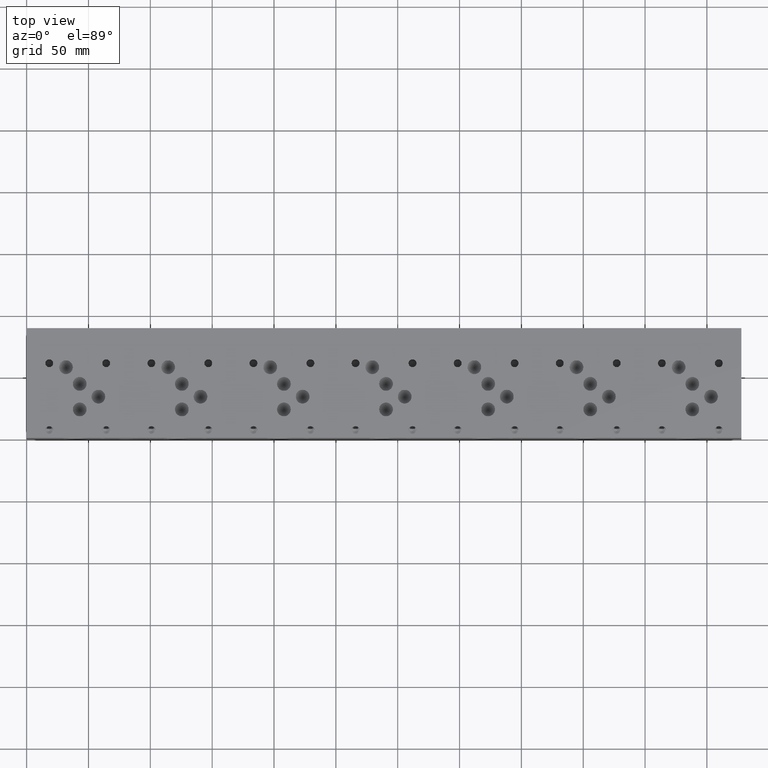
[diagram: clean part render]
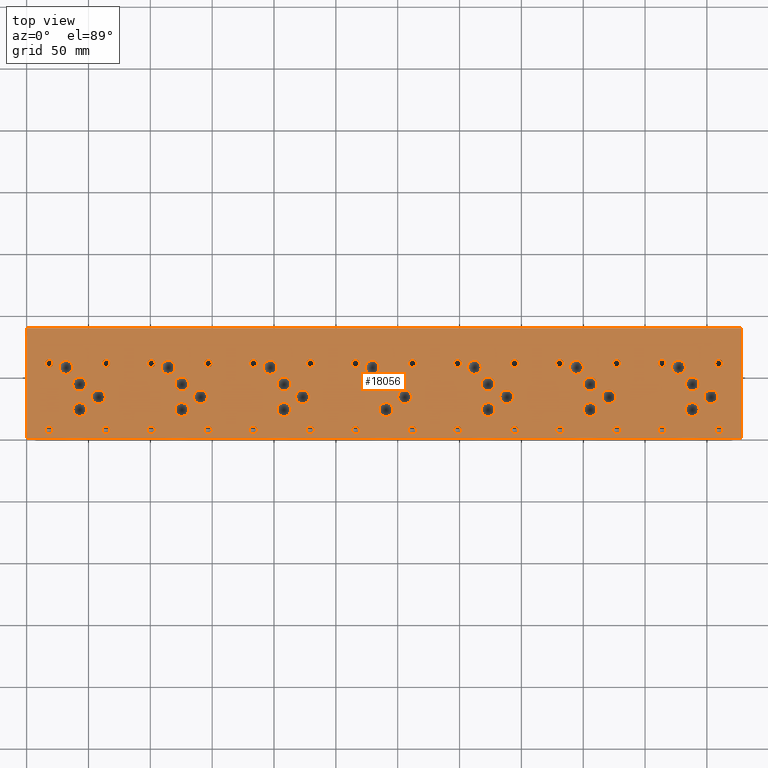
[diagram: same view with one face highlighted and labeled with its STEP entity id]
A machine part, top view. The second image highlights one B-rep face of the part: STEP entity #18056.
In plain terms, the highlighted planar face has unit normal (0, 0, 1).
Its self-contained STEP definition (entity closure, byte-faithful):
#602=CIRCLE('',#18781,5.5626);
#603=CIRCLE('',#18782,5.5626);
#606=CIRCLE('',#18787,5.5626);
#607=CIRCLE('',#18788,5.5626);
#610=CIRCLE('',#18793,5.5626);
#611=CIRCLE('',#18794,5.5626);
#614=CIRCLE('',#18799,5.5626);
#615=CIRCLE('',#18800,5.5626);
#618=CIRCLE('',#18805,5.5626);
#619=CIRCLE('',#18806,5.5626);
#622=CIRCLE('',#18811,5.5626);
#623=CIRCLE('',#18812,5.5626);
#626=CIRCLE('',#18817,5.5626);
#627=CIRCLE('',#18818,5.5626);
#630=CIRCLE('',#18823,5.5626);
#631=CIRCLE('',#18824,5.5626);
#634=CIRCLE('',#18829,5.5626);
#635=CIRCLE('',#18830,5.5626);
#638=CIRCLE('',#18835,5.5626);
#639=CIRCLE('',#18836,5.5626);
#642=CIRCLE('',#18841,5.5626);
#643=CIRCLE('',#18842,5.5626);
#646=CIRCLE('',#18847,5.5626);
#647=CIRCLE('',#18848,5.5626);
#650=CIRCLE('',#18853,5.5626);
#651=CIRCLE('',#18854,5.5626);
#654=CIRCLE('',#18859,5.5626);
#655=CIRCLE('',#18860,5.5626);
#658=CIRCLE('',#18865,5.5626);
#659=CIRCLE('',#18866,5.5626);
#662=CIRCLE('',#18871,5.5626);
#663=CIRCLE('',#18872,5.5626);
#666=CIRCLE('',#18877,5.5626);
#667=CIRCLE('',#18878,5.5626);
#670=CIRCLE('',#18883,5.5626);
#671=CIRCLE('',#18884,5.5626);
#674=CIRCLE('',#18889,5.5626);
#675=CIRCLE('',#18890,5.5626);
#678=CIRCLE('',#18895,5.5626);
#679=CIRCLE('',#18896,5.5626);
#682=CIRCLE('',#18901,5.5626);
#683=CIRCLE('',#18902,5.5626);
#686=CIRCLE('',#18907,5.5626);
#687=CIRCLE('',#18908,5.5626);
#690=CIRCLE('',#18913,5.5626);
#691=CIRCLE('',#18914,5.5626);
#694=CIRCLE('',#18919,5.5626);
#695=CIRCLE('',#18920,5.5626);
#698=CIRCLE('',#18925,5.5626);
#699=CIRCLE('',#18926,5.5626);
#702=CIRCLE('',#18931,5.5626);
#703=CIRCLE('',#18932,5.5626);
#706=CIRCLE('',#18937,5.5626);
#707=CIRCLE('',#18938,5.5626);
#710=CIRCLE('',#18943,5.5626);
#711=CIRCLE('',#18944,5.5626);
#717=CIRCLE('',#18953,3.175);
#718=CIRCLE('',#18954,3.175);
#724=CIRCLE('',#18964,3.175);
#725=CIRCLE('',#18965,3.175);
#731=CIRCLE('',#18975,3.175);
#732=CIRCLE('',#18976,3.175);
#738=CIRCLE('',#18986,3.175);
#739=CIRCLE('',#18987,3.175);
#745=CIRCLE('',#18997,3.175);
#746=CIRCLE('',#18998,3.175);
#752=CIRCLE('',#19008,3.175);
#753=CIRCLE('',#19009,3.175);
#759=CIRCLE('',#19019,3.175);
#760=CIRCLE('',#19020,3.175);
#766=CIRCLE('',#19030,3.175);
#767=CIRCLE('',#19031,3.175);
#773=CIRCLE('',#19041,3.175);
#774=CIRCLE('',#19042,3.175);
#780=CIRCLE('',#19052,3.175);
#781=CIRCLE('',#19053,3.175);
#787=CIRCLE('',#19063,3.175);
#788=CIRCLE('',#19064,3.175);
#794=CIRCLE('',#19074,3.175);
#795=CIRCLE('',#19075,3.175);
#801=CIRCLE('',#19085,3.175);
#802=CIRCLE('',#19086,3.175);
#808=CIRCLE('',#19096,3.175);
#809=CIRCLE('',#19097,3.175);
#815=CIRCLE('',#19107,3.175);
#816=CIRCLE('',#19108,3.175);
#822=CIRCLE('',#19118,3.175);
#823=CIRCLE('',#19119,3.175);
#829=CIRCLE('',#19129,3.175);
#830=CIRCLE('',#19130,3.175);
#836=CIRCLE('',#19140,3.175);
#837=CIRCLE('',#19141,3.175);
#843=CIRCLE('',#19151,3.175);
#844=CIRCLE('',#19152,3.175);
#850=CIRCLE('',#19162,3.175);
#851=CIRCLE('',#19163,3.175);
#857=CIRCLE('',#19173,3.175);
#858=CIRCLE('',#19174,3.175);
#864=CIRCLE('',#19184,3.175);
#865=CIRCLE('',#19185,3.175);
#871=CIRCLE('',#19195,3.175);
#872=CIRCLE('',#19196,3.175);
#878=CIRCLE('',#19206,3.175);
#879=CIRCLE('',#19207,3.175);
#885=CIRCLE('',#19217,3.175);
#886=CIRCLE('',#19218,3.175);
#892=CIRCLE('',#19228,3.175);
#893=CIRCLE('',#19229,3.175);
#899=CIRCLE('',#19239,3.175);
#900=CIRCLE('',#19240,3.175);
#906=CIRCLE('',#19250,3.175);
#907=CIRCLE('',#19251,3.175);
#1484=FACE_BOUND('',#3551,.T.);
#1485=FACE_BOUND('',#3552,.T.);
#1486=FACE_BOUND('',#3553,.T.);
#1487=FACE_BOUND('',#3554,.T.);
#1488=FACE_BOUND('',#3555,.T.);
#1489=FACE_BOUND('',#3556,.T.);
#1490=FACE_BOUND('',#3557,.T.);
#1491=FACE_BOUND('',#3558,.T.);
#1492=FACE_BOUND('',#3559,.T.);
#1493=FACE_BOUND('',#3560,.T.);
#1494=FACE_BOUND('',#3561,.T.);
#1495=FACE_BOUND('',#3562,.T.);
#1496=FACE_BOUND('',#3563,.T.);
#1497=FACE_BOUND('',#3564,.T.);
#1498=FACE_BOUND('',#3565,.T.);
#1499=FACE_BOUND('',#3566,.T.);
#1500=FACE_BOUND('',#3567,.T.);
#1501=FACE_BOUND('',#3568,.T.);
#1502=FACE_BOUND('',#3569,.T.);
#1503=FACE_BOUND('',#3570,.T.);
#1504=FACE_BOUND('',#3571,.T.);
#1505=FACE_BOUND('',#3572,.T.);
#1506=FACE_BOUND('',#3573,.T.);
#1507=FACE_BOUND('',#3574,.T.);
#1508=FACE_BOUND('',#3575,.T.);
#1509=FACE_BOUND('',#3576,.T.);
#1510=FACE_BOUND('',#3577,.T.);
#1511=FACE_BOUND('',#3578,.T.);
#1512=FACE_BOUND('',#3579,.T.);
#1513=FACE_BOUND('',#3580,.T.);
#1514=FACE_BOUND('',#3581,.T.);
#1515=FACE_BOUND('',#3582,.T.);
#1516=FACE_BOUND('',#3583,.T.);
#1517=FACE_BOUND('',#3584,.T.);
#1518=FACE_BOUND('',#3585,.T.);
#1519=FACE_BOUND('',#3586,.T.);
#1520=FACE_BOUND('',#3587,.T.);
#1521=FACE_BOUND('',#3588,.T.);
#1522=FACE_BOUND('',#3589,.T.);
#1523=FACE_BOUND('',#3590,.T.);
#1524=FACE_BOUND('',#3591,.T.);
#1525=FACE_BOUND('',#3592,.T.);
#1526=FACE_BOUND('',#3593,.T.);
#1527=FACE_BOUND('',#3594,.T.);
#1528=FACE_BOUND('',#3595,.T.);
#1529=FACE_BOUND('',#3596,.T.);
#1530=FACE_BOUND('',#3597,.T.);
#1531=FACE_BOUND('',#3598,.T.);
#1532=FACE_BOUND('',#3599,.T.);
#1533=FACE_BOUND('',#3600,.T.);
#1534=FACE_BOUND('',#3601,.T.);
#1535=FACE_BOUND('',#3602,.T.);
#1536=FACE_BOUND('',#3603,.T.);
#1537=FACE_BOUND('',#3604,.T.);
#1538=FACE_BOUND('',#3605,.T.);
#1539=FACE_BOUND('',#3606,.T.);
#2472=FACE_OUTER_BOUND('',#3550,.T.);
#3550=EDGE_LOOP('',(#15858,#15859,#15860,#15861));
#3551=EDGE_LOOP('',(#15862,#15863));
#3552=EDGE_LOOP('',(#15864,#15865));
#3553=EDGE_LOOP('',(#15866,#15867));
#3554=EDGE_LOOP('',(#15868,#15869));
#3555=EDGE_LOOP('',(#15870,#15871));
#3556=EDGE_LOOP('',(#15872,#15873));
#3557=EDGE_LOOP('',(#15874,#15875));
#3558=EDGE_LOOP('',(#15876,#15877));
#3559=EDGE_LOOP('',(#15878,#15879));
#3560=EDGE_LOOP('',(#15880,#15881));
#3561=EDGE_LOOP('',(#15882,#15883));
#3562=EDGE_LOOP('',(#15884,#15885));
#3563=EDGE_LOOP('',(#15886,#15887));
#3564=EDGE_LOOP('',(#15888,#15889));
#3565=EDGE_LOOP('',(#15890,#15891));
#3566=EDGE_LOOP('',(#15892,#15893));
#3567=EDGE_LOOP('',(#15894,#15895));
#3568=EDGE_LOOP('',(#15896,#15897));
#3569=EDGE_LOOP('',(#15898,#15899));
#3570=EDGE_LOOP('',(#15900,#15901));
#3571=EDGE_LOOP('',(#15902,#15903));
#3572=EDGE_LOOP('',(#15904,#15905));
#3573=EDGE_LOOP('',(#15906,#15907));
#3574=EDGE_LOOP('',(#15908,#15909));
#3575=EDGE_LOOP('',(#15910,#15911));
#3576=EDGE_LOOP('',(#15912,#15913));
#3577=EDGE_LOOP('',(#15914,#15915));
#3578=EDGE_LOOP('',(#15916,#15917));
#3579=EDGE_LOOP('',(#15918,#15919));
#3580=EDGE_LOOP('',(#15920,#15921));
#3581=EDGE_LOOP('',(#15922,#15923));
#3582=EDGE_LOOP('',(#15924,#15925));
#3583=EDGE_LOOP('',(#15926,#15927));
#3584=EDGE_LOOP('',(#15928,#15929));
#3585=EDGE_LOOP('',(#15930,#15931));
#3586=EDGE_LOOP('',(#15932,#15933));
#3587=EDGE_LOOP('',(#15934,#15935));
#3588=EDGE_LOOP('',(#15936,#15937));
#3589=EDGE_LOOP('',(#15938,#15939));
#3590=EDGE_LOOP('',(#15940,#15941));
#3591=EDGE_LOOP('',(#15942,#15943));
#3592=EDGE_LOOP('',(#15944,#15945));
#3593=EDGE_LOOP('',(#15946,#15947));
#3594=EDGE_LOOP('',(#15948,#15949));
#3595=EDGE_LOOP('',(#15950,#15951));
#3596=EDGE_LOOP('',(#15952,#15953));
#3597=EDGE_LOOP('',(#15954,#15955));
#3598=EDGE_LOOP('',(#15956,#15957));
#3599=EDGE_LOOP('',(#15958,#15959));
#3600=EDGE_LOOP('',(#15960,#15961));
#3601=EDGE_LOOP('',(#15962,#15963));
#3602=EDGE_LOOP('',(#15964,#15965));
#3603=EDGE_LOOP('',(#15966,#15967));
#3604=EDGE_LOOP('',(#15968,#15969));
#3605=EDGE_LOOP('',(#15970,#15971));
#3606=EDGE_LOOP('',(#15972,#15973));
#3643=LINE('',#23293,#5226);
#4830=LINE('',#29113,#6413);
#4890=LINE('',#29386,#6473);
#5190=LINE('',#31192,#6773);
#5226=VECTOR('',#19322,10.);
#6413=VECTOR('',#21339,10.);
#6473=VECTOR('',#21453,10.);
#6773=VECTOR('',#23209,10.);
#6798=VERTEX_POINT('',#23290);
#6799=VERTEX_POINT('',#23292);
#7889=VERTEX_POINT('',#29112);
#7947=VERTEX_POINT('',#29384);
#8165=VERTEX_POINT('',#30217);
#8166=VERTEX_POINT('',#30218);
#8170=VERTEX_POINT('',#30230);
#8171=VERTEX_POINT('',#30231);
#8175=VERTEX_POINT('',#30243);
#8176=VERTEX_POINT('',#30244);
#8180=VERTEX_POINT('',#30256);
#8181=VERTEX_POINT('',#30257);
#8185=VERTEX_POINT('',#30269);
#8186=VERTEX_POINT('',#30270);
#8190=VERTEX_POINT('',#30282);
#8191=VERTEX_POINT('',#30283);
#8195=VERTEX_POINT('',#30295);
#8196=VERTEX_POINT('',#30296);
#8200=VERTEX_POINT('',#30308);
#8201=VERTEX_POINT('',#30309);
#8205=VERTEX_POINT('',#30321);
#8206=VERTEX_POINT('',#30322);
#8210=VERTEX_POINT('',#30334);
#8211=VERTEX_POINT('',#30335);
#8215=VERTEX_POINT('',#30347);
#8216=VERTEX_POINT('',#30348);
#8220=VERTEX_POINT('',#30360);
#8221=VERTEX_POINT('',#30361);
#8225=VERTEX_POINT('',#30373);
#8226=VERTEX_POINT('',#30374);
#8230=VERTEX_POINT('',#30386);
#8231=VERTEX_POINT('',#30387);
#8235=VERTEX_POINT('',#30399);
#8236=VERTEX_POINT('',#30400);
#8240=VERTEX_POINT('',#30412);
#8241=VERTEX_POINT('',#30413);
#8245=VERTEX_POINT('',#30425);
#8246=VERTEX_POINT('',#30426);
#8250=VERTEX_POINT('',#30438);
#8251=VERTEX_POINT('',#30439);
#8255=VERTEX_POINT('',#30451);
#8256=VERTEX_POINT('',#30452);
#8260=VERTEX_POINT('',#30464);
#8261=VERTEX_POINT('',#30465);
#8265=VERTEX_POINT('',#30477);
#8266=VERTEX_POINT('',#30478);
#8270=VERTEX_POINT('',#30490);
#8271=VERTEX_POINT('',#30491);
#8275=VERTEX_POINT('',#30503);
#8276=VERTEX_POINT('',#30504);
#8280=VERTEX_POINT('',#30516);
#8281=VERTEX_POINT('',#30517);
#8285=VERTEX_POINT('',#30529);
#8286=VERTEX_POINT('',#30530);
#8290=VERTEX_POINT('',#30542);
#8291=VERTEX_POINT('',#30543);
#8295=VERTEX_POINT('',#30555);
#8296=VERTEX_POINT('',#30556);
#8300=VERTEX_POINT('',#30568);
#8301=VERTEX_POINT('',#30569);
#8308=VERTEX_POINT('',#30588);
#8309=VERTEX_POINT('',#30589);
#8316=VERTEX_POINT('',#30610);
#8317=VERTEX_POINT('',#30611);
#8324=VERTEX_POINT('',#30632);
#8325=VERTEX_POINT('',#30633);
#8332=VERTEX_POINT('',#30654);
#8333=VERTEX_POINT('',#30655);
#8340=VERTEX_POINT('',#30676);
#8341=VERTEX_POINT('',#30677);
#8348=VERTEX_POINT('',#30698);
#8349=VERTEX_POINT('',#30699);
#8356=VERTEX_POINT('',#30720);
#8357=VERTEX_POINT('',#30721);
#8364=VERTEX_POINT('',#30742);
#8365=VERTEX_POINT('',#30743);
#8372=VERTEX_POINT('',#30764);
#8373=VERTEX_POINT('',#30765);
#8380=VERTEX_POINT('',#30786);
#8381=VERTEX_POINT('',#30787);
#8388=VERTEX_POINT('',#30808);
#8389=VERTEX_POINT('',#30809);
#8396=VERTEX_POINT('',#30830);
#8397=VERTEX_POINT('',#30831);
#8404=VERTEX_POINT('',#30852);
#8405=VERTEX_POINT('',#30853);
#8412=VERTEX_POINT('',#30874);
#8413=VERTEX_POINT('',#30875);
#8420=VERTEX_POINT('',#30896);
#8421=VERTEX_POINT('',#30897);
#8428=VERTEX_POINT('',#30918);
#8429=VERTEX_POINT('',#30919);
#8436=VERTEX_POINT('',#30940);
#8437=VERTEX_POINT('',#30941);
#8444=VERTEX_POINT('',#30962);
#8445=VERTEX_POINT('',#30963);
#8452=VERTEX_POINT('',#30984);
#8453=VERTEX_POINT('',#30985);
#8460=VERTEX_POINT('',#31006);
#8461=VERTEX_POINT('',#31007);
#8468=VERTEX_POINT('',#31028);
#8469=VERTEX_POINT('',#31029);
#8476=VERTEX_POINT('',#31050);
#8477=VERTEX_POINT('',#31051);
#8484=VERTEX_POINT('',#31072);
#8485=VERTEX_POINT('',#31073);
#8492=VERTEX_POINT('',#31094);
#8493=VERTEX_POINT('',#31095);
#8500=VERTEX_POINT('',#31116);
#8501=VERTEX_POINT('',#31117);
#8508=VERTEX_POINT('',#31138);
#8509=VERTEX_POINT('',#31139);
#8516=VERTEX_POINT('',#31160);
#8517=VERTEX_POINT('',#31161);
#8524=VERTEX_POINT('',#31182);
#8525=VERTEX_POINT('',#31183);
#8561=EDGE_CURVE('',#6799,#6798,#3643,.T.);
#10172=EDGE_CURVE('',#7889,#6799,#4830,.T.);
#10256=EDGE_CURVE('',#6798,#7947,#4890,.T.);
#10563=EDGE_CURVE('',#8165,#8166,#602,.T.);
#10564=EDGE_CURVE('',#8166,#8165,#603,.T.);
#10569=EDGE_CURVE('',#8170,#8171,#606,.T.);
#10570=EDGE_CURVE('',#8171,#8170,#607,.T.);
#10575=EDGE_CURVE('',#8175,#8176,#610,.T.);
#10576=EDGE_CURVE('',#8176,#8175,#611,.T.);
#10581=EDGE_CURVE('',#8180,#8181,#614,.T.);
#10582=EDGE_CURVE('',#8181,#8180,#615,.T.);
#10587=EDGE_CURVE('',#8185,#8186,#618,.T.);
#10588=EDGE_CURVE('',#8186,#8185,#619,.T.);
#10593=EDGE_CURVE('',#8190,#8191,#622,.T.);
#10594=EDGE_CURVE('',#8191,#8190,#623,.T.);
#10599=EDGE_CURVE('',#8195,#8196,#626,.T.);
#10600=EDGE_CURVE('',#8196,#8195,#627,.T.);
#10605=EDGE_CURVE('',#8200,#8201,#630,.T.);
#10606=EDGE_CURVE('',#8201,#8200,#631,.T.);
#10611=EDGE_CURVE('',#8205,#8206,#634,.T.);
#10612=EDGE_CURVE('',#8206,#8205,#635,.T.);
#10617=EDGE_CURVE('',#8210,#8211,#638,.T.);
#10618=EDGE_CURVE('',#8211,#8210,#639,.T.);
#10623=EDGE_CURVE('',#8215,#8216,#642,.T.);
#10624=EDGE_CURVE('',#8216,#8215,#643,.T.);
#10629=EDGE_CURVE('',#8220,#8221,#646,.T.);
#10630=EDGE_CURVE('',#8221,#8220,#647,.T.);
#10635=EDGE_CURVE('',#8225,#8226,#650,.T.);
#10636=EDGE_CURVE('',#8226,#8225,#651,.T.);
#10641=EDGE_CURVE('',#8230,#8231,#654,.T.);
#10642=EDGE_CURVE('',#8231,#8230,#655,.T.);
#10647=EDGE_CURVE('',#8235,#8236,#658,.T.);
#10648=EDGE_CURVE('',#8236,#8235,#659,.T.);
#10653=EDGE_CURVE('',#8240,#8241,#662,.T.);
#10654=EDGE_CURVE('',#8241,#8240,#663,.T.);
#10659=EDGE_CURVE('',#8245,#8246,#666,.T.);
#10660=EDGE_CURVE('',#8246,#8245,#667,.T.);
#10665=EDGE_CURVE('',#8250,#8251,#670,.T.);
#10666=EDGE_CURVE('',#8251,#8250,#671,.T.);
#10671=EDGE_CURVE('',#8255,#8256,#674,.T.);
#10672=EDGE_CURVE('',#8256,#8255,#675,.T.);
#10677=EDGE_CURVE('',#8260,#8261,#678,.T.);
#10678=EDGE_CURVE('',#8261,#8260,#679,.T.);
#10683=EDGE_CURVE('',#8265,#8266,#682,.T.);
#10684=EDGE_CURVE('',#8266,#8265,#683,.T.);
#10689=EDGE_CURVE('',#8270,#8271,#686,.T.);
#10690=EDGE_CURVE('',#8271,#8270,#687,.T.);
#10695=EDGE_CURVE('',#8275,#8276,#690,.T.);
#10696=EDGE_CURVE('',#8276,#8275,#691,.T.);
#10701=EDGE_CURVE('',#8280,#8281,#694,.T.);
#10702=EDGE_CURVE('',#8281,#8280,#695,.T.);
#10707=EDGE_CURVE('',#8285,#8286,#698,.T.);
#10708=EDGE_CURVE('',#8286,#8285,#699,.T.);
#10713=EDGE_CURVE('',#8290,#8291,#702,.T.);
#10714=EDGE_CURVE('',#8291,#8290,#703,.T.);
#10719=EDGE_CURVE('',#8295,#8296,#706,.T.);
#10720=EDGE_CURVE('',#8296,#8295,#707,.T.);
#10725=EDGE_CURVE('',#8300,#8301,#710,.T.);
#10726=EDGE_CURVE('',#8301,#8300,#711,.T.);
#10734=EDGE_CURVE('',#8308,#8309,#717,.T.);
#10735=EDGE_CURVE('',#8309,#8308,#718,.T.);
#10744=EDGE_CURVE('',#8316,#8317,#724,.T.);
#10745=EDGE_CURVE('',#8317,#8316,#725,.T.);
#10754=EDGE_CURVE('',#8324,#8325,#731,.T.);
#10755=EDGE_CURVE('',#8325,#8324,#732,.T.);
#10764=EDGE_CURVE('',#8332,#8333,#738,.T.);
#10765=EDGE_CURVE('',#8333,#8332,#739,.T.);
#10774=EDGE_CURVE('',#8340,#8341,#745,.T.);
#10775=EDGE_CURVE('',#8341,#8340,#746,.T.);
#10784=EDGE_CURVE('',#8348,#8349,#752,.T.);
#10785=EDGE_CURVE('',#8349,#8348,#753,.T.);
#10794=EDGE_CURVE('',#8356,#8357,#759,.T.);
#10795=EDGE_CURVE('',#8357,#8356,#760,.T.);
#10804=EDGE_CURVE('',#8364,#8365,#766,.T.);
#10805=EDGE_CURVE('',#8365,#8364,#767,.T.);
#10814=EDGE_CURVE('',#8372,#8373,#773,.T.);
#10815=EDGE_CURVE('',#8373,#8372,#774,.T.);
#10824=EDGE_CURVE('',#8380,#8381,#780,.T.);
#10825=EDGE_CURVE('',#8381,#8380,#781,.T.);
#10834=EDGE_CURVE('',#8388,#8389,#787,.T.);
#10835=EDGE_CURVE('',#8389,#8388,#788,.T.);
#10844=EDGE_CURVE('',#8396,#8397,#794,.T.);
#10845=EDGE_CURVE('',#8397,#8396,#795,.T.);
#10854=EDGE_CURVE('',#8404,#8405,#801,.T.);
#10855=EDGE_CURVE('',#8405,#8404,#802,.T.);
#10864=EDGE_CURVE('',#8412,#8413,#808,.T.);
#10865=EDGE_CURVE('',#8413,#8412,#809,.T.);
#10874=EDGE_CURVE('',#8420,#8421,#815,.T.);
#10875=EDGE_CURVE('',#8421,#8420,#816,.T.);
#10884=EDGE_CURVE('',#8428,#8429,#822,.T.);
#10885=EDGE_CURVE('',#8429,#8428,#823,.T.);
#10894=EDGE_CURVE('',#8436,#8437,#829,.T.);
#10895=EDGE_CURVE('',#8437,#8436,#830,.T.);
#10904=EDGE_CURVE('',#8444,#8445,#836,.T.);
#10905=EDGE_CURVE('',#8445,#8444,#837,.T.);
#10914=EDGE_CURVE('',#8452,#8453,#843,.T.);
#10915=EDGE_CURVE('',#8453,#8452,#844,.T.);
#10924=EDGE_CURVE('',#8460,#8461,#850,.T.);
#10925=EDGE_CURVE('',#8461,#8460,#851,.T.);
#10934=EDGE_CURVE('',#8468,#8469,#857,.T.);
#10935=EDGE_CURVE('',#8469,#8468,#858,.T.);
#10944=EDGE_CURVE('',#8476,#8477,#864,.T.);
#10945=EDGE_CURVE('',#8477,#8476,#865,.T.);
#10954=EDGE_CURVE('',#8484,#8485,#871,.T.);
#10955=EDGE_CURVE('',#8485,#8484,#872,.T.);
#10964=EDGE_CURVE('',#8492,#8493,#878,.T.);
#10965=EDGE_CURVE('',#8493,#8492,#879,.T.);
#10974=EDGE_CURVE('',#8500,#8501,#885,.T.);
#10975=EDGE_CURVE('',#8501,#8500,#886,.T.);
#10984=EDGE_CURVE('',#8508,#8509,#892,.T.);
#10985=EDGE_CURVE('',#8509,#8508,#893,.T.);
#10994=EDGE_CURVE('',#8516,#8517,#899,.T.);
#10995=EDGE_CURVE('',#8517,#8516,#900,.T.);
#11004=EDGE_CURVE('',#8524,#8525,#906,.T.);
#11005=EDGE_CURVE('',#8525,#8524,#907,.T.);
#11009=EDGE_CURVE('',#7947,#7889,#5190,.T.);
#15858=ORIENTED_EDGE('',*,*,#8561,.T.);
#15859=ORIENTED_EDGE('',*,*,#10256,.T.);
#15860=ORIENTED_EDGE('',*,*,#11009,.T.);
#15861=ORIENTED_EDGE('',*,*,#10172,.T.);
#15862=ORIENTED_EDGE('',*,*,#10563,.T.);
#15863=ORIENTED_EDGE('',*,*,#10564,.T.);
#15864=ORIENTED_EDGE('',*,*,#10569,.T.);
#15865=ORIENTED_EDGE('',*,*,#10570,.T.);
#15866=ORIENTED_EDGE('',*,*,#10575,.T.);
#15867=ORIENTED_EDGE('',*,*,#10576,.T.);
#15868=ORIENTED_EDGE('',*,*,#10581,.T.);
#15869=ORIENTED_EDGE('',*,*,#10582,.T.);
#15870=ORIENTED_EDGE('',*,*,#10587,.T.);
#15871=ORIENTED_EDGE('',*,*,#10588,.T.);
#15872=ORIENTED_EDGE('',*,*,#10593,.T.);
#15873=ORIENTED_EDGE('',*,*,#10594,.T.);
#15874=ORIENTED_EDGE('',*,*,#10599,.T.);
#15875=ORIENTED_EDGE('',*,*,#10600,.T.);
#15876=ORIENTED_EDGE('',*,*,#10605,.T.);
#15877=ORIENTED_EDGE('',*,*,#10606,.T.);
#15878=ORIENTED_EDGE('',*,*,#10611,.T.);
#15879=ORIENTED_EDGE('',*,*,#10612,.T.);
#15880=ORIENTED_EDGE('',*,*,#10617,.T.);
#15881=ORIENTED_EDGE('',*,*,#10618,.T.);
#15882=ORIENTED_EDGE('',*,*,#10623,.T.);
#15883=ORIENTED_EDGE('',*,*,#10624,.T.);
#15884=ORIENTED_EDGE('',*,*,#10629,.T.);
#15885=ORIENTED_EDGE('',*,*,#10630,.T.);
#15886=ORIENTED_EDGE('',*,*,#10635,.T.);
#15887=ORIENTED_EDGE('',*,*,#10636,.T.);
#15888=ORIENTED_EDGE('',*,*,#10641,.T.);
#15889=ORIENTED_EDGE('',*,*,#10642,.T.);
#15890=ORIENTED_EDGE('',*,*,#10647,.T.);
#15891=ORIENTED_EDGE('',*,*,#10648,.T.);
#15892=ORIENTED_EDGE('',*,*,#10653,.T.);
#15893=ORIENTED_EDGE('',*,*,#10654,.T.);
#15894=ORIENTED_EDGE('',*,*,#10659,.T.);
#15895=ORIENTED_EDGE('',*,*,#10660,.T.);
#15896=ORIENTED_EDGE('',*,*,#10665,.T.);
#15897=ORIENTED_EDGE('',*,*,#10666,.T.);
#15898=ORIENTED_EDGE('',*,*,#10671,.T.);
#15899=ORIENTED_EDGE('',*,*,#10672,.T.);
#15900=ORIENTED_EDGE('',*,*,#10677,.T.);
#15901=ORIENTED_EDGE('',*,*,#10678,.T.);
#15902=ORIENTED_EDGE('',*,*,#10683,.T.);
#15903=ORIENTED_EDGE('',*,*,#10684,.T.);
#15904=ORIENTED_EDGE('',*,*,#10689,.T.);
#15905=ORIENTED_EDGE('',*,*,#10690,.T.);
#15906=ORIENTED_EDGE('',*,*,#10695,.T.);
#15907=ORIENTED_EDGE('',*,*,#10696,.T.);
#15908=ORIENTED_EDGE('',*,*,#10701,.T.);
#15909=ORIENTED_EDGE('',*,*,#10702,.T.);
#15910=ORIENTED_EDGE('',*,*,#10707,.T.);
#15911=ORIENTED_EDGE('',*,*,#10708,.T.);
#15912=ORIENTED_EDGE('',*,*,#10713,.T.);
#15913=ORIENTED_EDGE('',*,*,#10714,.T.);
#15914=ORIENTED_EDGE('',*,*,#10719,.T.);
#15915=ORIENTED_EDGE('',*,*,#10720,.T.);
#15916=ORIENTED_EDGE('',*,*,#10725,.T.);
#15917=ORIENTED_EDGE('',*,*,#10726,.T.);
#15918=ORIENTED_EDGE('',*,*,#10734,.T.);
#15919=ORIENTED_EDGE('',*,*,#10735,.T.);
#15920=ORIENTED_EDGE('',*,*,#10744,.T.);
#15921=ORIENTED_EDGE('',*,*,#10745,.T.);
#15922=ORIENTED_EDGE('',*,*,#10754,.T.);
#15923=ORIENTED_EDGE('',*,*,#10755,.T.);
#15924=ORIENTED_EDGE('',*,*,#10764,.T.);
#15925=ORIENTED_EDGE('',*,*,#10765,.T.);
#15926=ORIENTED_EDGE('',*,*,#10774,.T.);
#15927=ORIENTED_EDGE('',*,*,#10775,.T.);
#15928=ORIENTED_EDGE('',*,*,#10784,.T.);
#15929=ORIENTED_EDGE('',*,*,#10785,.T.);
#15930=ORIENTED_EDGE('',*,*,#10794,.T.);
#15931=ORIENTED_EDGE('',*,*,#10795,.T.);
#15932=ORIENTED_EDGE('',*,*,#10804,.T.);
#15933=ORIENTED_EDGE('',*,*,#10805,.T.);
#15934=ORIENTED_EDGE('',*,*,#10814,.T.);
#15935=ORIENTED_EDGE('',*,*,#10815,.T.);
#15936=ORIENTED_EDGE('',*,*,#10824,.T.);
#15937=ORIENTED_EDGE('',*,*,#10825,.T.);
#15938=ORIENTED_EDGE('',*,*,#10834,.T.);
#15939=ORIENTED_EDGE('',*,*,#10835,.T.);
#15940=ORIENTED_EDGE('',*,*,#10844,.T.);
#15941=ORIENTED_EDGE('',*,*,#10845,.T.);
#15942=ORIENTED_EDGE('',*,*,#10854,.T.);
#15943=ORIENTED_EDGE('',*,*,#10855,.T.);
#15944=ORIENTED_EDGE('',*,*,#10864,.T.);
#15945=ORIENTED_EDGE('',*,*,#10865,.T.);
#15946=ORIENTED_EDGE('',*,*,#10874,.T.);
#15947=ORIENTED_EDGE('',*,*,#10875,.T.);
#15948=ORIENTED_EDGE('',*,*,#10884,.T.);
#15949=ORIENTED_EDGE('',*,*,#10885,.T.);
#15950=ORIENTED_EDGE('',*,*,#10894,.T.);
#15951=ORIENTED_EDGE('',*,*,#10895,.T.);
#15952=ORIENTED_EDGE('',*,*,#10904,.T.);
#15953=ORIENTED_EDGE('',*,*,#10905,.T.);
#15954=ORIENTED_EDGE('',*,*,#10914,.T.);
#15955=ORIENTED_EDGE('',*,*,#10915,.T.);
#15956=ORIENTED_EDGE('',*,*,#10924,.T.);
#15957=ORIENTED_EDGE('',*,*,#10925,.T.);
#15958=ORIENTED_EDGE('',*,*,#10934,.T.);
#15959=ORIENTED_EDGE('',*,*,#10935,.T.);
#15960=ORIENTED_EDGE('',*,*,#10944,.T.);
#15961=ORIENTED_EDGE('',*,*,#10945,.T.);
#15962=ORIENTED_EDGE('',*,*,#10954,.T.);
#15963=ORIENTED_EDGE('',*,*,#10955,.T.);
#15964=ORIENTED_EDGE('',*,*,#10964,.T.);
#15965=ORIENTED_EDGE('',*,*,#10965,.T.);
#15966=ORIENTED_EDGE('',*,*,#10974,.T.);
#15967=ORIENTED_EDGE('',*,*,#10975,.T.);
#15968=ORIENTED_EDGE('',*,*,#10984,.T.);
#15969=ORIENTED_EDGE('',*,*,#10985,.T.);
#15970=ORIENTED_EDGE('',*,*,#10994,.T.);
#15971=ORIENTED_EDGE('',*,*,#10995,.T.);
#15972=ORIENTED_EDGE('',*,*,#11004,.T.);
#15973=ORIENTED_EDGE('',*,*,#11005,.T.);
#16485=PLANE('',#19257);
#18056=ADVANCED_FACE('',(#2472,#1484,#1485,#1486,#1487,#1488,#1489,#1490,
#1491,#1492,#1493,#1494,#1495,#1496,#1497,#1498,#1499,#1500,#1501,#1502,
#1503,#1504,#1505,#1506,#1507,#1508,#1509,#1510,#1511,#1512,#1513,#1514,
#1515,#1516,#1517,#1518,#1519,#1520,#1521,#1522,#1523,#1524,#1525,#1526,
#1527,#1528,#1529,#1530,#1531,#1532,#1533,#1534,#1535,#1536,#1537,#1538,
#1539),#16485,.T.);
#18781=AXIS2_PLACEMENT_3D('',#30219,#22121,#22122);
#18782=AXIS2_PLACEMENT_3D('',#30220,#22123,#22124);
#18787=AXIS2_PLACEMENT_3D('',#30232,#22135,#22136);
#18788=AXIS2_PLACEMENT_3D('',#30233,#22137,#22138);
#18793=AXIS2_PLACEMENT_3D('',#30245,#22149,#22150);
#18794=AXIS2_PLACEMENT_3D('',#30246,#22151,#22152);
#18799=AXIS2_PLACEMENT_3D('',#30258,#22163,#22164);
#18800=AXIS2_PLACEMENT_3D('',#30259,#22165,#22166);
#18805=AXIS2_PLACEMENT_3D('',#30271,#22177,#22178);
#18806=AXIS2_PLACEMENT_3D('',#30272,#22179,#22180);
#18811=AXIS2_PLACEMENT_3D('',#30284,#22191,#22192);
#18812=AXIS2_PLACEMENT_3D('',#30285,#22193,#22194);
#18817=AXIS2_PLACEMENT_3D('',#30297,#22205,#22206);
#18818=AXIS2_PLACEMENT_3D('',#30298,#22207,#22208);
#18823=AXIS2_PLACEMENT_3D('',#30310,#22219,#22220);
#18824=AXIS2_PLACEMENT_3D('',#30311,#22221,#22222);
#18829=AXIS2_PLACEMENT_3D('',#30323,#22233,#22234);
#18830=AXIS2_PLACEMENT_3D('',#30324,#22235,#22236);
#18835=AXIS2_PLACEMENT_3D('',#30336,#22247,#22248);
#18836=AXIS2_PLACEMENT_3D('',#30337,#22249,#22250);
#18841=AXIS2_PLACEMENT_3D('',#30349,#22261,#22262);
#18842=AXIS2_PLACEMENT_3D('',#30350,#22263,#22264);
#18847=AXIS2_PLACEMENT_3D('',#30362,#22275,#22276);
#18848=AXIS2_PLACEMENT_3D('',#30363,#22277,#22278);
#18853=AXIS2_PLACEMENT_3D('',#30375,#22289,#22290);
#18854=AXIS2_PLACEMENT_3D('',#30376,#22291,#22292);
#18859=AXIS2_PLACEMENT_3D('',#30388,#22303,#22304);
#18860=AXIS2_PLACEMENT_3D('',#30389,#22305,#22306);
#18865=AXIS2_PLACEMENT_3D('',#30401,#22317,#22318);
#18866=AXIS2_PLACEMENT_3D('',#30402,#22319,#22320);
#18871=AXIS2_PLACEMENT_3D('',#30414,#22331,#22332);
#18872=AXIS2_PLACEMENT_3D('',#30415,#22333,#22334);
#18877=AXIS2_PLACEMENT_3D('',#30427,#22345,#22346);
#18878=AXIS2_PLACEMENT_3D('',#30428,#22347,#22348);
#18883=AXIS2_PLACEMENT_3D('',#30440,#22359,#22360);
#18884=AXIS2_PLACEMENT_3D('',#30441,#22361,#22362);
#18889=AXIS2_PLACEMENT_3D('',#30453,#22373,#22374);
#18890=AXIS2_PLACEMENT_3D('',#30454,#22375,#22376);
#18895=AXIS2_PLACEMENT_3D('',#30466,#22387,#22388);
#18896=AXIS2_PLACEMENT_3D('',#30467,#22389,#22390);
#18901=AXIS2_PLACEMENT_3D('',#30479,#22401,#22402);
#18902=AXIS2_PLACEMENT_3D('',#30480,#22403,#22404);
#18907=AXIS2_PLACEMENT_3D('',#30492,#22415,#22416);
#18908=AXIS2_PLACEMENT_3D('',#30493,#22417,#22418);
#18913=AXIS2_PLACEMENT_3D('',#30505,#22429,#22430);
#18914=AXIS2_PLACEMENT_3D('',#30506,#22431,#22432);
#18919=AXIS2_PLACEMENT_3D('',#30518,#22443,#22444);
#18920=AXIS2_PLACEMENT_3D('',#30519,#22445,#22446);
#18925=AXIS2_PLACEMENT_3D('',#30531,#22457,#22458);
#18926=AXIS2_PLACEMENT_3D('',#30532,#22459,#22460);
#18931=AXIS2_PLACEMENT_3D('',#30544,#22471,#22472);
#18932=AXIS2_PLACEMENT_3D('',#30545,#22473,#22474);
#18937=AXIS2_PLACEMENT_3D('',#30557,#22485,#22486);
#18938=AXIS2_PLACEMENT_3D('',#30558,#22487,#22488);
#18943=AXIS2_PLACEMENT_3D('',#30570,#22499,#22500);
#18944=AXIS2_PLACEMENT_3D('',#30571,#22501,#22502);
#18953=AXIS2_PLACEMENT_3D('',#30590,#22521,#22522);
#18954=AXIS2_PLACEMENT_3D('',#30591,#22523,#22524);
#18964=AXIS2_PLACEMENT_3D('',#30612,#22546,#22547);
#18965=AXIS2_PLACEMENT_3D('',#30613,#22548,#22549);
#18975=AXIS2_PLACEMENT_3D('',#30634,#22571,#22572);
#18976=AXIS2_PLACEMENT_3D('',#30635,#22573,#22574);
#18986=AXIS2_PLACEMENT_3D('',#30656,#22596,#22597);
#18987=AXIS2_PLACEMENT_3D('',#30657,#22598,#22599);
#18997=AXIS2_PLACEMENT_3D('',#30678,#22621,#22622);
#18998=AXIS2_PLACEMENT_3D('',#30679,#22623,#22624);
#19008=AXIS2_PLACEMENT_3D('',#30700,#22646,#22647);
#19009=AXIS2_PLACEMENT_3D('',#30701,#22648,#22649);
#19019=AXIS2_PLACEMENT_3D('',#30722,#22671,#22672);
#19020=AXIS2_PLACEMENT_3D('',#30723,#22673,#22674);
#19030=AXIS2_PLACEMENT_3D('',#30744,#22696,#22697);
#19031=AXIS2_PLACEMENT_3D('',#30745,#22698,#22699);
#19041=AXIS2_PLACEMENT_3D('',#30766,#22721,#22722);
#19042=AXIS2_PLACEMENT_3D('',#30767,#22723,#22724);
#19052=AXIS2_PLACEMENT_3D('',#30788,#22746,#22747);
#19053=AXIS2_PLACEMENT_3D('',#30789,#22748,#22749);
#19063=AXIS2_PLACEMENT_3D('',#30810,#22771,#22772);
#19064=AXIS2_PLACEMENT_3D('',#30811,#22773,#22774);
#19074=AXIS2_PLACEMENT_3D('',#30832,#22796,#22797);
#19075=AXIS2_PLACEMENT_3D('',#30833,#22798,#22799);
#19085=AXIS2_PLACEMENT_3D('',#30854,#22821,#22822);
#19086=AXIS2_PLACEMENT_3D('',#30855,#22823,#22824);
#19096=AXIS2_PLACEMENT_3D('',#30876,#22846,#22847);
#19097=AXIS2_PLACEMENT_3D('',#30877,#22848,#22849);
#19107=AXIS2_PLACEMENT_3D('',#30898,#22871,#22872);
#19108=AXIS2_PLACEMENT_3D('',#30899,#22873,#22874);
#19118=AXIS2_PLACEMENT_3D('',#30920,#22896,#22897);
#19119=AXIS2_PLACEMENT_3D('',#30921,#22898,#22899);
#19129=AXIS2_PLACEMENT_3D('',#30942,#22921,#22922);
#19130=AXIS2_PLACEMENT_3D('',#30943,#22923,#22924);
#19140=AXIS2_PLACEMENT_3D('',#30964,#22946,#22947);
#19141=AXIS2_PLACEMENT_3D('',#30965,#22948,#22949);
#19151=AXIS2_PLACEMENT_3D('',#30986,#22971,#22972);
#19152=AXIS2_PLACEMENT_3D('',#30987,#22973,#22974);
#19162=AXIS2_PLACEMENT_3D('',#31008,#22996,#22997);
#19163=AXIS2_PLACEMENT_3D('',#31009,#22998,#22999);
#19173=AXIS2_PLACEMENT_3D('',#31030,#23021,#23022);
#19174=AXIS2_PLACEMENT_3D('',#31031,#23023,#23024);
#19184=AXIS2_PLACEMENT_3D('',#31052,#23046,#23047);
#19185=AXIS2_PLACEMENT_3D('',#31053,#23048,#23049);
#19195=AXIS2_PLACEMENT_3D('',#31074,#23071,#23072);
#19196=AXIS2_PLACEMENT_3D('',#31075,#23073,#23074);
#19206=AXIS2_PLACEMENT_3D('',#31096,#23096,#23097);
#19207=AXIS2_PLACEMENT_3D('',#31097,#23098,#23099);
#19217=AXIS2_PLACEMENT_3D('',#31118,#23121,#23122);
#19218=AXIS2_PLACEMENT_3D('',#31119,#23123,#23124);
#19228=AXIS2_PLACEMENT_3D('',#31140,#23146,#23147);
#19229=AXIS2_PLACEMENT_3D('',#31141,#23148,#23149);
#19239=AXIS2_PLACEMENT_3D('',#31162,#23171,#23172);
#19240=AXIS2_PLACEMENT_3D('',#31163,#23173,#23174);
#19250=AXIS2_PLACEMENT_3D('',#31184,#23196,#23197);
#19251=AXIS2_PLACEMENT_3D('',#31185,#23198,#23199);
#19257=AXIS2_PLACEMENT_3D('',#31195,#23214,#23215);
#19322=DIRECTION('',(1.,0.,0.));
#21339=DIRECTION('',(0.,-1.,0.));
#21453=DIRECTION('',(0.,1.,0.));
#22121=DIRECTION('center_axis',(0.,0.,-1.));
#22122=DIRECTION('ref_axis',(1.,0.,0.));
#22123=DIRECTION('center_axis',(0.,0.,-1.));
#22124=DIRECTION('ref_axis',(1.,0.,0.));
#22135=DIRECTION('center_axis',(0.,0.,-1.));
#22136=DIRECTION('ref_axis',(1.,0.,0.));
#22137=DIRECTION('center_axis',(0.,0.,-1.));
#22138=DIRECTION('ref_axis',(1.,0.,0.));
#22149=DIRECTION('center_axis',(0.,0.,-1.));
#22150=DIRECTION('ref_axis',(1.,0.,0.));
#22151=DIRECTION('center_axis',(0.,0.,-1.));
#22152=DIRECTION('ref_axis',(1.,0.,0.));
#22163=DIRECTION('center_axis',(0.,0.,-1.));
#22164=DIRECTION('ref_axis',(1.,0.,0.));
#22165=DIRECTION('center_axis',(0.,0.,-1.));
#22166=DIRECTION('ref_axis',(1.,0.,0.));
#22177=DIRECTION('center_axis',(0.,0.,-1.));
#22178=DIRECTION('ref_axis',(1.,0.,0.));
#22179=DIRECTION('center_axis',(0.,0.,-1.));
#22180=DIRECTION('ref_axis',(1.,0.,0.));
#22191=DIRECTION('center_axis',(0.,0.,-1.));
#22192=DIRECTION('ref_axis',(1.,0.,0.));
#22193=DIRECTION('center_axis',(0.,0.,-1.));
#22194=DIRECTION('ref_axis',(1.,0.,0.));
#22205=DIRECTION('center_axis',(0.,0.,-1.));
#22206=DIRECTION('ref_axis',(1.,0.,0.));
#22207=DIRECTION('center_axis',(0.,0.,-1.));
#22208=DIRECTION('ref_axis',(1.,0.,0.));
#22219=DIRECTION('center_axis',(0.,0.,-1.));
#22220=DIRECTION('ref_axis',(1.,0.,0.));
#22221=DIRECTION('center_axis',(0.,0.,-1.));
#22222=DIRECTION('ref_axis',(1.,0.,0.));
#22233=DIRECTION('center_axis',(0.,0.,-1.));
#22234=DIRECTION('ref_axis',(1.,0.,0.));
#22235=DIRECTION('center_axis',(0.,0.,-1.));
#22236=DIRECTION('ref_axis',(1.,0.,0.));
#22247=DIRECTION('center_axis',(0.,0.,-1.));
#22248=DIRECTION('ref_axis',(1.,0.,0.));
#22249=DIRECTION('center_axis',(0.,0.,-1.));
#22250=DIRECTION('ref_axis',(1.,0.,0.));
#22261=DIRECTION('center_axis',(0.,0.,-1.));
#22262=DIRECTION('ref_axis',(1.,0.,0.));
#22263=DIRECTION('center_axis',(0.,0.,-1.));
#22264=DIRECTION('ref_axis',(1.,0.,0.));
#22275=DIRECTION('center_axis',(0.,0.,-1.));
#22276=DIRECTION('ref_axis',(1.,0.,0.));
#22277=DIRECTION('center_axis',(0.,0.,-1.));
#22278=DIRECTION('ref_axis',(1.,0.,0.));
#22289=DIRECTION('center_axis',(0.,0.,-1.));
#22290=DIRECTION('ref_axis',(1.,0.,0.));
#22291=DIRECTION('center_axis',(0.,0.,-1.));
#22292=DIRECTION('ref_axis',(1.,0.,0.));
#22303=DIRECTION('center_axis',(0.,0.,-1.));
#22304=DIRECTION('ref_axis',(1.,0.,0.));
#22305=DIRECTION('center_axis',(0.,0.,-1.));
#22306=DIRECTION('ref_axis',(1.,0.,0.));
#22317=DIRECTION('center_axis',(0.,0.,-1.));
#22318=DIRECTION('ref_axis',(1.,0.,0.));
#22319=DIRECTION('center_axis',(0.,0.,-1.));
#22320=DIRECTION('ref_axis',(1.,0.,0.));
#22331=DIRECTION('center_axis',(0.,0.,-1.));
#22332=DIRECTION('ref_axis',(1.,0.,0.));
#22333=DIRECTION('center_axis',(0.,0.,-1.));
#22334=DIRECTION('ref_axis',(1.,0.,0.));
#22345=DIRECTION('center_axis',(0.,0.,-1.));
#22346=DIRECTION('ref_axis',(1.,0.,0.));
#22347=DIRECTION('center_axis',(0.,0.,-1.));
#22348=DIRECTION('ref_axis',(1.,0.,0.));
#22359=DIRECTION('center_axis',(0.,0.,-1.));
#22360=DIRECTION('ref_axis',(1.,0.,0.));
#22361=DIRECTION('center_axis',(0.,0.,-1.));
#22362=DIRECTION('ref_axis',(1.,0.,0.));
#22373=DIRECTION('center_axis',(0.,0.,-1.));
#22374=DIRECTION('ref_axis',(1.,0.,0.));
#22375=DIRECTION('center_axis',(0.,0.,-1.));
#22376=DIRECTION('ref_axis',(1.,0.,0.));
#22387=DIRECTION('center_axis',(0.,0.,-1.));
#22388=DIRECTION('ref_axis',(1.,0.,0.));
#22389=DIRECTION('center_axis',(0.,0.,-1.));
#22390=DIRECTION('ref_axis',(1.,0.,0.));
#22401=DIRECTION('center_axis',(0.,0.,-1.));
#22402=DIRECTION('ref_axis',(1.,0.,0.));
#22403=DIRECTION('center_axis',(0.,0.,-1.));
#22404=DIRECTION('ref_axis',(1.,0.,0.));
#22415=DIRECTION('center_axis',(0.,0.,-1.));
#22416=DIRECTION('ref_axis',(1.,0.,0.));
#22417=DIRECTION('center_axis',(0.,0.,-1.));
#22418=DIRECTION('ref_axis',(1.,0.,0.));
#22429=DIRECTION('center_axis',(0.,0.,-1.));
#22430=DIRECTION('ref_axis',(1.,0.,0.));
#22431=DIRECTION('center_axis',(0.,0.,-1.));
#22432=DIRECTION('ref_axis',(1.,0.,0.));
#22443=DIRECTION('center_axis',(0.,0.,-1.));
#22444=DIRECTION('ref_axis',(1.,0.,0.));
#22445=DIRECTION('center_axis',(0.,0.,-1.));
#22446=DIRECTION('ref_axis',(1.,0.,0.));
#22457=DIRECTION('center_axis',(0.,0.,-1.));
#22458=DIRECTION('ref_axis',(1.,0.,0.));
#22459=DIRECTION('center_axis',(0.,0.,-1.));
#22460=DIRECTION('ref_axis',(1.,0.,0.));
#22471=DIRECTION('center_axis',(0.,0.,-1.));
#22472=DIRECTION('ref_axis',(1.,0.,0.));
#22473=DIRECTION('center_axis',(0.,0.,-1.));
#22474=DIRECTION('ref_axis',(1.,0.,0.));
#22485=DIRECTION('center_axis',(0.,0.,-1.));
#22486=DIRECTION('ref_axis',(1.,0.,0.));
#22487=DIRECTION('center_axis',(0.,0.,-1.));
#22488=DIRECTION('ref_axis',(1.,0.,0.));
#22499=DIRECTION('center_axis',(0.,0.,-1.));
#22500=DIRECTION('ref_axis',(1.,0.,0.));
#22501=DIRECTION('center_axis',(0.,0.,-1.));
#22502=DIRECTION('ref_axis',(1.,0.,0.));
#22521=DIRECTION('center_axis',(0.,0.,-1.));
#22522=DIRECTION('ref_axis',(1.,0.,0.));
#22523=DIRECTION('center_axis',(0.,0.,-1.));
#22524=DIRECTION('ref_axis',(1.,0.,0.));
#22546=DIRECTION('center_axis',(0.,0.,-1.));
#22547=DIRECTION('ref_axis',(1.,0.,0.));
#22548=DIRECTION('center_axis',(0.,0.,-1.));
#22549=DIRECTION('ref_axis',(1.,0.,0.));
#22571=DIRECTION('center_axis',(0.,0.,-1.));
#22572=DIRECTION('ref_axis',(1.,0.,0.));
#22573=DIRECTION('center_axis',(0.,0.,-1.));
#22574=DIRECTION('ref_axis',(1.,0.,0.));
#22596=DIRECTION('center_axis',(0.,0.,-1.));
#22597=DIRECTION('ref_axis',(1.,0.,0.));
#22598=DIRECTION('center_axis',(0.,0.,-1.));
#22599=DIRECTION('ref_axis',(1.,0.,0.));
#22621=DIRECTION('center_axis',(0.,0.,-1.));
#22622=DIRECTION('ref_axis',(1.,0.,0.));
#22623=DIRECTION('center_axis',(0.,0.,-1.));
#22624=DIRECTION('ref_axis',(1.,0.,0.));
#22646=DIRECTION('center_axis',(0.,0.,-1.));
#22647=DIRECTION('ref_axis',(1.,0.,0.));
#22648=DIRECTION('center_axis',(0.,0.,-1.));
#22649=DIRECTION('ref_axis',(1.,0.,0.));
#22671=DIRECTION('center_axis',(0.,0.,-1.));
#22672=DIRECTION('ref_axis',(1.,0.,0.));
#22673=DIRECTION('center_axis',(0.,0.,-1.));
#22674=DIRECTION('ref_axis',(1.,0.,0.));
#22696=DIRECTION('center_axis',(0.,0.,-1.));
#22697=DIRECTION('ref_axis',(1.,0.,0.));
#22698=DIRECTION('center_axis',(0.,0.,-1.));
#22699=DIRECTION('ref_axis',(1.,0.,0.));
#22721=DIRECTION('center_axis',(0.,0.,-1.));
#22722=DIRECTION('ref_axis',(1.,0.,0.));
#22723=DIRECTION('center_axis',(0.,0.,-1.));
#22724=DIRECTION('ref_axis',(1.,0.,0.));
#22746=DIRECTION('center_axis',(0.,0.,-1.));
#22747=DIRECTION('ref_axis',(1.,0.,0.));
#22748=DIRECTION('center_axis',(0.,0.,-1.));
#22749=DIRECTION('ref_axis',(1.,0.,0.));
#22771=DIRECTION('center_axis',(0.,0.,-1.));
#22772=DIRECTION('ref_axis',(1.,0.,0.));
#22773=DIRECTION('center_axis',(0.,0.,-1.));
#22774=DIRECTION('ref_axis',(1.,0.,0.));
#22796=DIRECTION('center_axis',(0.,0.,-1.));
#22797=DIRECTION('ref_axis',(1.,0.,0.));
#22798=DIRECTION('center_axis',(0.,0.,-1.));
#22799=DIRECTION('ref_axis',(1.,0.,0.));
#22821=DIRECTION('center_axis',(0.,0.,-1.));
#22822=DIRECTION('ref_axis',(1.,0.,0.));
#22823=DIRECTION('center_axis',(0.,0.,-1.));
#22824=DIRECTION('ref_axis',(1.,0.,0.));
#22846=DIRECTION('center_axis',(0.,0.,-1.));
#22847=DIRECTION('ref_axis',(1.,0.,0.));
#22848=DIRECTION('center_axis',(0.,0.,-1.));
#22849=DIRECTION('ref_axis',(1.,0.,0.));
#22871=DIRECTION('center_axis',(0.,0.,-1.));
#22872=DIRECTION('ref_axis',(1.,0.,0.));
#22873=DIRECTION('center_axis',(0.,0.,-1.));
#22874=DIRECTION('ref_axis',(1.,0.,0.));
#22896=DIRECTION('center_axis',(0.,0.,-1.));
#22897=DIRECTION('ref_axis',(1.,0.,0.));
#22898=DIRECTION('center_axis',(0.,0.,-1.));
#22899=DIRECTION('ref_axis',(1.,0.,0.));
#22921=DIRECTION('center_axis',(0.,0.,-1.));
#22922=DIRECTION('ref_axis',(1.,0.,0.));
#22923=DIRECTION('center_axis',(0.,0.,-1.));
#22924=DIRECTION('ref_axis',(1.,0.,0.));
#22946=DIRECTION('center_axis',(0.,0.,-1.));
#22947=DIRECTION('ref_axis',(1.,0.,0.));
#22948=DIRECTION('center_axis',(0.,0.,-1.));
#22949=DIRECTION('ref_axis',(1.,0.,0.));
#22971=DIRECTION('center_axis',(0.,0.,-1.));
#22972=DIRECTION('ref_axis',(1.,0.,0.));
#22973=DIRECTION('center_axis',(0.,0.,-1.));
#22974=DIRECTION('ref_axis',(1.,0.,0.));
#22996=DIRECTION('center_axis',(0.,0.,-1.));
#22997=DIRECTION('ref_axis',(1.,0.,0.));
#22998=DIRECTION('center_axis',(0.,0.,-1.));
#22999=DIRECTION('ref_axis',(1.,0.,0.));
#23021=DIRECTION('center_axis',(0.,0.,-1.));
#23022=DIRECTION('ref_axis',(1.,0.,0.));
#23023=DIRECTION('center_axis',(0.,0.,-1.));
#23024=DIRECTION('ref_axis',(1.,0.,0.));
#23046=DIRECTION('center_axis',(0.,0.,-1.));
#23047=DIRECTION('ref_axis',(1.,0.,0.));
#23048=DIRECTION('center_axis',(0.,0.,-1.));
#23049=DIRECTION('ref_axis',(1.,0.,0.));
#23071=DIRECTION('center_axis',(0.,0.,-1.));
#23072=DIRECTION('ref_axis',(1.,0.,0.));
#23073=DIRECTION('center_axis',(0.,0.,-1.));
#23074=DIRECTION('ref_axis',(1.,0.,0.));
#23096=DIRECTION('center_axis',(0.,0.,-1.));
#23097=DIRECTION('ref_axis',(1.,0.,0.));
#23098=DIRECTION('center_axis',(0.,0.,-1.));
#23099=DIRECTION('ref_axis',(1.,0.,0.));
#23121=DIRECTION('center_axis',(0.,0.,-1.));
#23122=DIRECTION('ref_axis',(1.,0.,0.));
#23123=DIRECTION('center_axis',(0.,0.,-1.));
#23124=DIRECTION('ref_axis',(1.,0.,0.));
#23146=DIRECTION('center_axis',(0.,0.,-1.));
#23147=DIRECTION('ref_axis',(1.,0.,0.));
#23148=DIRECTION('center_axis',(0.,0.,-1.));
#23149=DIRECTION('ref_axis',(1.,0.,0.));
#23171=DIRECTION('center_axis',(0.,0.,-1.));
#23172=DIRECTION('ref_axis',(1.,0.,0.));
#23173=DIRECTION('center_axis',(0.,0.,-1.));
#23174=DIRECTION('ref_axis',(1.,0.,0.));
#23196=DIRECTION('center_axis',(0.,0.,-1.));
#23197=DIRECTION('ref_axis',(1.,0.,0.));
#23198=DIRECTION('center_axis',(0.,0.,-1.));
#23199=DIRECTION('ref_axis',(1.,0.,0.));
#23209=DIRECTION('',(-1.,0.,0.));
#23214=DIRECTION('center_axis',(0.,0.,1.));
#23215=DIRECTION('ref_axis',(1.,0.,0.));
#23290=CARTESIAN_POINT('',(577.85,0.,88.9));
#23292=CARTESIAN_POINT('',(0.,0.,88.9));
#23293=CARTESIAN_POINT('',(0.,0.,88.9));
#29112=CARTESIAN_POINT('',(0.,88.9,88.9));
#29113=CARTESIAN_POINT('',(0.,88.9,88.9));
#29384=CARTESIAN_POINT('',(577.85,88.9,88.9));
#29386=CARTESIAN_POINT('',(577.85,0.,88.9));
#30217=CARTESIAN_POINT('',(543.7378,43.6499,88.9));
#30218=CARTESIAN_POINT('',(532.6126,43.6499,88.9));
#30219=CARTESIAN_POINT('Origin',(538.1752,43.6499,88.9));
#30220=CARTESIAN_POINT('Origin',(538.1752,43.6499,88.9));
#30230=CARTESIAN_POINT('',(558.8254,33.3629,88.9));
#30231=CARTESIAN_POINT('',(547.7002,33.3629,88.9));
#30232=CARTESIAN_POINT('Origin',(553.2628,33.3629,88.9));
#30233=CARTESIAN_POINT('Origin',(553.2628,33.3629,88.9));
#30243=CARTESIAN_POINT('',(461.1878,43.6499,88.9));
#30244=CARTESIAN_POINT('',(450.0626,43.6499,88.9));
#30245=CARTESIAN_POINT('Origin',(455.6252,43.6499,88.9));
#30246=CARTESIAN_POINT('Origin',(455.6252,43.6499,88.9));
#30256=CARTESIAN_POINT('',(476.2754,33.3629,88.9));
#30257=CARTESIAN_POINT('',(465.1502,33.3629,88.9));
#30258=CARTESIAN_POINT('Origin',(470.7128,33.3629,88.9));
#30259=CARTESIAN_POINT('Origin',(470.7128,33.3629,88.9));
#30269=CARTESIAN_POINT('',(378.6378,43.6499,88.9));
#30270=CARTESIAN_POINT('',(367.5126,43.6499,88.9));
#30271=CARTESIAN_POINT('Origin',(373.0752,43.6499,88.9));
#30272=CARTESIAN_POINT('Origin',(373.0752,43.6499,88.9));
#30282=CARTESIAN_POINT('',(393.7254,33.3629,88.9));
#30283=CARTESIAN_POINT('',(382.6002,33.3629,88.9));
#30284=CARTESIAN_POINT('Origin',(388.1628,33.3629,88.9));
#30285=CARTESIAN_POINT('Origin',(388.1628,33.3629,88.9));
#30295=CARTESIAN_POINT('',(296.0878,43.6499,88.9));
#30296=CARTESIAN_POINT('',(284.9626,43.6499,88.9));
#30297=CARTESIAN_POINT('Origin',(290.5252,43.6499,88.9));
#30298=CARTESIAN_POINT('Origin',(290.5252,43.6499,88.9));
#30308=CARTESIAN_POINT('',(311.1754,33.3375,88.9));
#30309=CARTESIAN_POINT('',(300.0502,33.3375,88.9));
#30310=CARTESIAN_POINT('Origin',(305.6128,33.3375,88.9));
#30311=CARTESIAN_POINT('Origin',(305.6128,33.3375,88.9));
#30321=CARTESIAN_POINT('',(213.5378,43.6499,88.9));
#30322=CARTESIAN_POINT('',(202.4126,43.6499,88.9));
#30323=CARTESIAN_POINT('Origin',(207.9752,43.6499,88.9));
#30324=CARTESIAN_POINT('Origin',(207.9752,43.6499,88.9));
#30334=CARTESIAN_POINT('',(228.6254,33.3629,88.9));
#30335=CARTESIAN_POINT('',(217.5002,33.3629,88.9));
#30336=CARTESIAN_POINT('Origin',(223.0628,33.3629,88.9));
#30337=CARTESIAN_POINT('Origin',(223.0628,33.3629,88.9));
#30347=CARTESIAN_POINT('',(130.9878,43.6499,88.9));
#30348=CARTESIAN_POINT('',(119.8626,43.6499,88.9));
#30349=CARTESIAN_POINT('Origin',(125.4252,43.6499,88.9));
#30350=CARTESIAN_POINT('Origin',(125.4252,43.6499,88.9));
#30360=CARTESIAN_POINT('',(146.0754,33.3375,88.9));
#30361=CARTESIAN_POINT('',(134.9502,33.3375,88.9));
#30362=CARTESIAN_POINT('Origin',(140.5128,33.3375,88.9));
#30363=CARTESIAN_POINT('Origin',(140.5128,33.3375,88.9));
#30373=CARTESIAN_POINT('',(48.4251,43.64228,88.9));
#30374=CARTESIAN_POINT('',(37.2999,43.64228,88.9));
#30375=CARTESIAN_POINT('Origin',(42.8625,43.64228,88.9));
#30376=CARTESIAN_POINT('Origin',(42.8625,43.64228,88.9));
#30386=CARTESIAN_POINT('',(63.5254,33.3248,88.9));
#30387=CARTESIAN_POINT('',(52.4002,33.3248,88.9));
#30388=CARTESIAN_POINT('Origin',(57.9628,33.3248,88.9));
#30389=CARTESIAN_POINT('Origin',(57.9628,33.3248,88.9));
#30399=CARTESIAN_POINT('',(37.3126,57.15,88.9));
#30400=CARTESIAN_POINT('',(26.1874,57.15,88.9));
#30401=CARTESIAN_POINT('Origin',(31.75,57.15,88.9));
#30402=CARTESIAN_POINT('Origin',(31.75,57.15,88.9));
#30412=CARTESIAN_POINT('',(48.43018,23.00732,88.9));
#30413=CARTESIAN_POINT('',(37.30498,23.00732,88.9));
#30414=CARTESIAN_POINT('Origin',(42.86758,23.00732,88.9));
#30415=CARTESIAN_POINT('Origin',(42.86758,23.00732,88.9));
#30425=CARTESIAN_POINT('',(119.8626,57.1627,88.9));
#30426=CARTESIAN_POINT('',(108.7374,57.1627,88.9));
#30427=CARTESIAN_POINT('Origin',(114.3,57.1627,88.9));
#30428=CARTESIAN_POINT('Origin',(114.3,57.1627,88.9));
#30438=CARTESIAN_POINT('',(130.9878,23.0251,88.9));
#30439=CARTESIAN_POINT('',(119.8626,23.0251,88.9));
#30440=CARTESIAN_POINT('Origin',(125.4252,23.0251,88.9));
#30441=CARTESIAN_POINT('Origin',(125.4252,23.0251,88.9));
#30451=CARTESIAN_POINT('',(202.4126,57.1627,88.9));
#30452=CARTESIAN_POINT('',(191.2874,57.1627,88.9));
#30453=CARTESIAN_POINT('Origin',(196.85,57.1627,88.9));
#30454=CARTESIAN_POINT('Origin',(196.85,57.1627,88.9));
#30464=CARTESIAN_POINT('',(213.5378,23.0251,88.9));
#30465=CARTESIAN_POINT('',(202.4126,23.0251,88.9));
#30466=CARTESIAN_POINT('Origin',(207.9752,23.0251,88.9));
#30467=CARTESIAN_POINT('Origin',(207.9752,23.0251,88.9));
#30477=CARTESIAN_POINT('',(284.9626,57.1627,88.9));
#30478=CARTESIAN_POINT('',(273.8374,57.1627,88.9));
#30479=CARTESIAN_POINT('Origin',(279.4,57.1627,88.9));
#30480=CARTESIAN_POINT('Origin',(279.4,57.1627,88.9));
#30490=CARTESIAN_POINT('',(296.0878,23.0251,88.9));
#30491=CARTESIAN_POINT('',(284.9626,23.0251,88.9));
#30492=CARTESIAN_POINT('Origin',(290.5252,23.0251,88.9));
#30493=CARTESIAN_POINT('Origin',(290.5252,23.0251,88.9));
#30503=CARTESIAN_POINT('',(367.5126,57.1627,88.9));
#30504=CARTESIAN_POINT('',(356.3874,57.1627,88.9));
#30505=CARTESIAN_POINT('Origin',(361.95,57.1627,88.9));
#30506=CARTESIAN_POINT('Origin',(361.95,57.1627,88.9));
#30516=CARTESIAN_POINT('',(378.6378,23.0251,88.9));
#30517=CARTESIAN_POINT('',(367.5126,23.0251,88.9));
#30518=CARTESIAN_POINT('Origin',(373.0752,23.0251,88.9));
#30519=CARTESIAN_POINT('Origin',(373.0752,23.0251,88.9));
#30529=CARTESIAN_POINT('',(450.0626,57.1627,88.9));
#30530=CARTESIAN_POINT('',(438.9374,57.1627,88.9));
#30531=CARTESIAN_POINT('Origin',(444.5,57.1627,88.9));
#30532=CARTESIAN_POINT('Origin',(444.5,57.1627,88.9));
#30542=CARTESIAN_POINT('',(461.1878,23.0251,88.9));
#30543=CARTESIAN_POINT('',(450.0626,23.0251,88.9));
#30544=CARTESIAN_POINT('Origin',(455.6252,23.0251,88.9));
#30545=CARTESIAN_POINT('Origin',(455.6252,23.0251,88.9));
#30555=CARTESIAN_POINT('',(532.6126,57.1627,88.9));
#30556=CARTESIAN_POINT('',(521.4874,57.1627,88.9));
#30557=CARTESIAN_POINT('Origin',(527.05,57.1627,88.9));
#30558=CARTESIAN_POINT('Origin',(527.05,57.1627,88.9));
#30568=CARTESIAN_POINT('',(543.7378,23.0251,88.9));
#30569=CARTESIAN_POINT('',(532.6126,23.0251,88.9));
#30570=CARTESIAN_POINT('Origin',(538.1752,23.0251,88.9));
#30571=CARTESIAN_POINT('Origin',(538.1752,23.0251,88.9));
#30588=CARTESIAN_POINT('',(562.7624,6.3627,88.9));
#30589=CARTESIAN_POINT('',(556.4124,6.3627,88.9));
#30590=CARTESIAN_POINT('Origin',(559.5874,6.3627,88.9));
#30591=CARTESIAN_POINT('Origin',(559.5874,6.3627,88.9));
#30610=CARTESIAN_POINT('',(516.7122,60.3377,88.9));
#30611=CARTESIAN_POINT('',(510.3622,60.3377,88.9));
#30612=CARTESIAN_POINT('Origin',(513.5372,60.3377,88.9));
#30613=CARTESIAN_POINT('Origin',(513.5372,60.3377,88.9));
#30632=CARTESIAN_POINT('',(480.2124,6.3627,88.9));
#30633=CARTESIAN_POINT('',(473.8624,6.3627,88.9));
#30634=CARTESIAN_POINT('Origin',(477.0374,6.3627,88.9));
#30635=CARTESIAN_POINT('Origin',(477.0374,6.3627,88.9));
#30654=CARTESIAN_POINT('',(434.1622,60.3377,88.9));
#30655=CARTESIAN_POINT('',(427.8122,60.3377,88.9));
#30656=CARTESIAN_POINT('Origin',(430.9872,60.3377,88.9));
#30657=CARTESIAN_POINT('Origin',(430.9872,60.3377,88.9));
#30676=CARTESIAN_POINT('',(397.6624,6.3627,88.9));
#30677=CARTESIAN_POINT('',(391.3124,6.3627,88.9));
#30678=CARTESIAN_POINT('Origin',(394.4874,6.3627,88.9));
#30679=CARTESIAN_POINT('Origin',(394.4874,6.3627,88.9));
#30698=CARTESIAN_POINT('',(351.6122,60.3377,88.9));
#30699=CARTESIAN_POINT('',(345.2622,60.3377,88.9));
#30700=CARTESIAN_POINT('Origin',(348.4372,60.3377,88.9));
#30701=CARTESIAN_POINT('Origin',(348.4372,60.3377,88.9));
#30720=CARTESIAN_POINT('',(315.1124,6.3627,88.9));
#30721=CARTESIAN_POINT('',(308.7624,6.3627,88.9));
#30722=CARTESIAN_POINT('Origin',(311.9374,6.3627,88.9));
#30723=CARTESIAN_POINT('Origin',(311.9374,6.3627,88.9));
#30742=CARTESIAN_POINT('',(269.0622,60.3377,88.9));
#30743=CARTESIAN_POINT('',(262.7122,60.3377,88.9));
#30744=CARTESIAN_POINT('Origin',(265.8872,60.3377,88.9));
#30745=CARTESIAN_POINT('Origin',(265.8872,60.3377,88.9));
#30764=CARTESIAN_POINT('',(232.5624,6.3627,88.9));
#30765=CARTESIAN_POINT('',(226.2124,6.3627,88.9));
#30766=CARTESIAN_POINT('Origin',(229.3874,6.3627,88.9));
#30767=CARTESIAN_POINT('Origin',(229.3874,6.3627,88.9));
#30786=CARTESIAN_POINT('',(186.5122,60.3377,88.9));
#30787=CARTESIAN_POINT('',(180.1622,60.3377,88.9));
#30788=CARTESIAN_POINT('Origin',(183.3372,60.3377,88.9));
#30789=CARTESIAN_POINT('Origin',(183.3372,60.3377,88.9));
#30808=CARTESIAN_POINT('',(150.0124,6.3627,88.9));
#30809=CARTESIAN_POINT('',(143.6624,6.3627,88.9));
#30810=CARTESIAN_POINT('Origin',(146.8374,6.3627,88.9));
#30811=CARTESIAN_POINT('Origin',(146.8374,6.3627,88.9));
#30830=CARTESIAN_POINT('',(103.9622,60.3377,88.9));
#30831=CARTESIAN_POINT('',(97.6122,60.3377,88.9));
#30832=CARTESIAN_POINT('Origin',(100.7872,60.3377,88.9));
#30833=CARTESIAN_POINT('Origin',(100.7872,60.3377,88.9));
#30852=CARTESIAN_POINT('',(67.4624,6.3627,88.9));
#30853=CARTESIAN_POINT('',(61.1124,6.3627,88.9));
#30854=CARTESIAN_POINT('Origin',(64.2874,6.3627,88.9));
#30855=CARTESIAN_POINT('Origin',(64.2874,6.3627,88.9));
#30874=CARTESIAN_POINT('',(21.4122,60.325,88.9));
#30875=CARTESIAN_POINT('',(15.0622,60.325,88.9));
#30876=CARTESIAN_POINT('Origin',(18.2372,60.325,88.9));
#30877=CARTESIAN_POINT('Origin',(18.2372,60.325,88.9));
#30896=CARTESIAN_POINT('',(67.4624,60.325,88.9));
#30897=CARTESIAN_POINT('',(61.1124,60.325,88.9));
#30898=CARTESIAN_POINT('Origin',(64.2874,60.325,88.9));
#30899=CARTESIAN_POINT('Origin',(64.2874,60.325,88.9));
#30918=CARTESIAN_POINT('',(21.4122,6.35,88.9));
#30919=CARTESIAN_POINT('',(15.0622,6.35,88.9));
#30920=CARTESIAN_POINT('Origin',(18.2372,6.35,88.9));
#30921=CARTESIAN_POINT('Origin',(18.2372,6.35,88.9));
#30940=CARTESIAN_POINT('',(150.0124,60.3377,88.9));
#30941=CARTESIAN_POINT('',(143.6624,60.3377,88.9));
#30942=CARTESIAN_POINT('Origin',(146.8374,60.3377,88.9));
#30943=CARTESIAN_POINT('Origin',(146.8374,60.3377,88.9));
#30962=CARTESIAN_POINT('',(103.9622,6.3627,88.9));
#30963=CARTESIAN_POINT('',(97.6122,6.3627,88.9));
#30964=CARTESIAN_POINT('Origin',(100.7872,6.3627,88.9));
#30965=CARTESIAN_POINT('Origin',(100.7872,6.3627,88.9));
#30984=CARTESIAN_POINT('',(232.5624,60.3377,88.9));
#30985=CARTESIAN_POINT('',(226.2124,60.3377,88.9));
#30986=CARTESIAN_POINT('Origin',(229.3874,60.3377,88.9));
#30987=CARTESIAN_POINT('Origin',(229.3874,60.3377,88.9));
#31006=CARTESIAN_POINT('',(186.5122,6.3627,88.9));
#31007=CARTESIAN_POINT('',(180.1622,6.3627,88.9));
#31008=CARTESIAN_POINT('Origin',(183.3372,6.3627,88.9));
#31009=CARTESIAN_POINT('Origin',(183.3372,6.3627,88.9));
#31028=CARTESIAN_POINT('',(315.1124,60.3377,88.9));
#31029=CARTESIAN_POINT('',(308.7624,60.3377,88.9));
#31030=CARTESIAN_POINT('Origin',(311.9374,60.3377,88.9));
#31031=CARTESIAN_POINT('Origin',(311.9374,60.3377,88.9));
#31050=CARTESIAN_POINT('',(269.0622,6.3627,88.9));
#31051=CARTESIAN_POINT('',(262.7122,6.3627,88.9));
#31052=CARTESIAN_POINT('Origin',(265.8872,6.3627,88.9));
#31053=CARTESIAN_POINT('Origin',(265.8872,6.3627,88.9));
#31072=CARTESIAN_POINT('',(397.6624,60.3377,88.9));
#31073=CARTESIAN_POINT('',(391.3124,60.3377,88.9));
#31074=CARTESIAN_POINT('Origin',(394.4874,60.3377,88.9));
#31075=CARTESIAN_POINT('Origin',(394.4874,60.3377,88.9));
#31094=CARTESIAN_POINT('',(351.6122,6.3627,88.9));
#31095=CARTESIAN_POINT('',(345.2622,6.3627,88.9));
#31096=CARTESIAN_POINT('Origin',(348.4372,6.3627,88.9));
#31097=CARTESIAN_POINT('Origin',(348.4372,6.3627,88.9));
#31116=CARTESIAN_POINT('',(480.2124,60.3377,88.9));
#31117=CARTESIAN_POINT('',(473.8624,60.3377,88.9));
#31118=CARTESIAN_POINT('Origin',(477.0374,60.3377,88.9));
#31119=CARTESIAN_POINT('Origin',(477.0374,60.3377,88.9));
#31138=CARTESIAN_POINT('',(434.1622,6.3627,88.9));
#31139=CARTESIAN_POINT('',(427.8122,6.3627,88.9));
#31140=CARTESIAN_POINT('Origin',(430.9872,6.3627,88.9));
#31141=CARTESIAN_POINT('Origin',(430.9872,6.3627,88.9));
#31160=CARTESIAN_POINT('',(562.7624,60.3377,88.9));
#31161=CARTESIAN_POINT('',(556.4124,60.3377,88.9));
#31162=CARTESIAN_POINT('Origin',(559.5874,60.3377,88.9));
#31163=CARTESIAN_POINT('Origin',(559.5874,60.3377,88.9));
#31182=CARTESIAN_POINT('',(516.7122,6.3627,88.9));
#31183=CARTESIAN_POINT('',(510.3622,6.3627,88.9));
#31184=CARTESIAN_POINT('Origin',(513.5372,6.3627,88.9));
#31185=CARTESIAN_POINT('Origin',(513.5372,6.3627,88.9));
#31192=CARTESIAN_POINT('',(577.85,88.9,88.9));
#31195=CARTESIAN_POINT('Origin',(288.925,44.45,88.9));